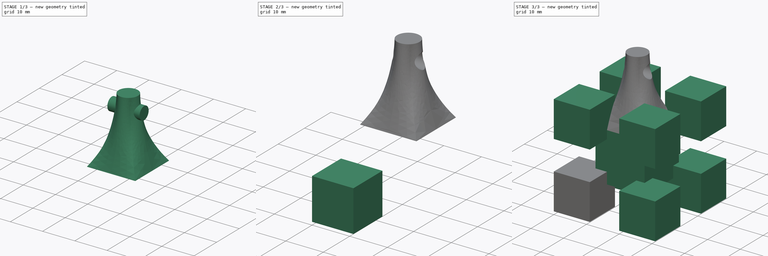
[diagram: build sequence overview — one tinted view per stage of 3, left to right]
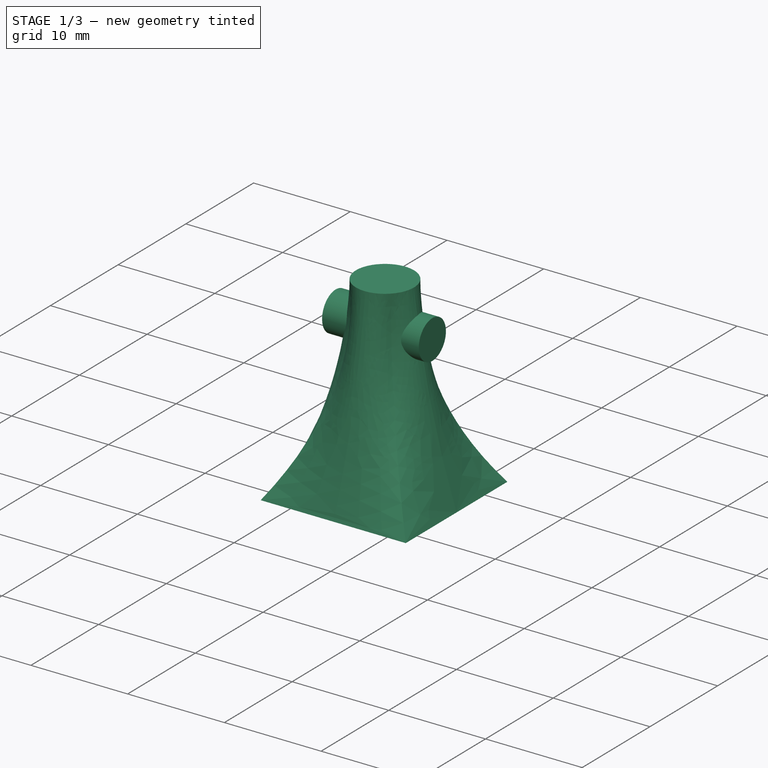
[diagram: stage 1 of 3 — iso view after this stage's code; geometry added in this stage tinted green]
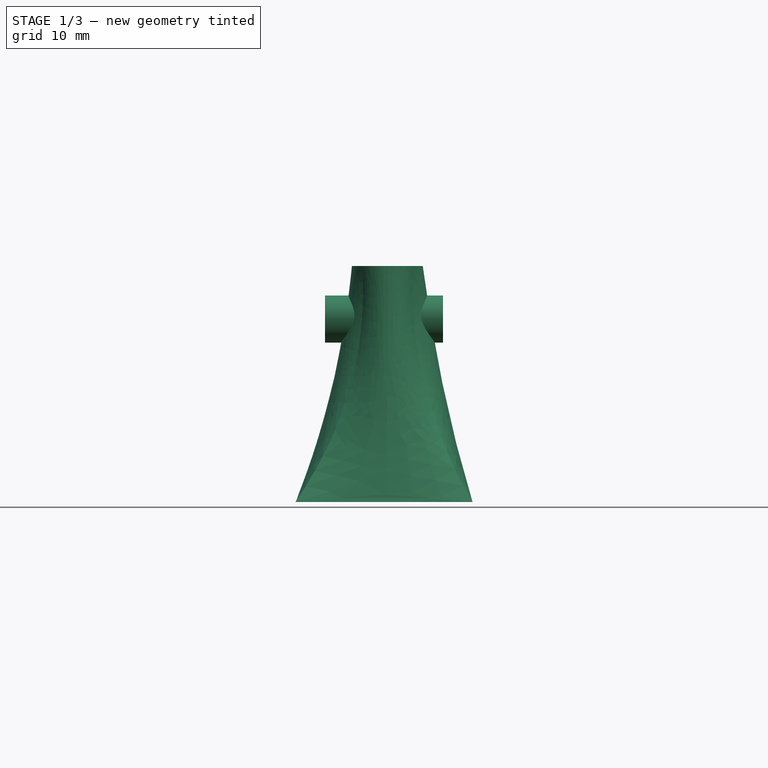
[diagram: stage 1 of 3 — front view after this stage's code; geometry added in this stage tinted green]
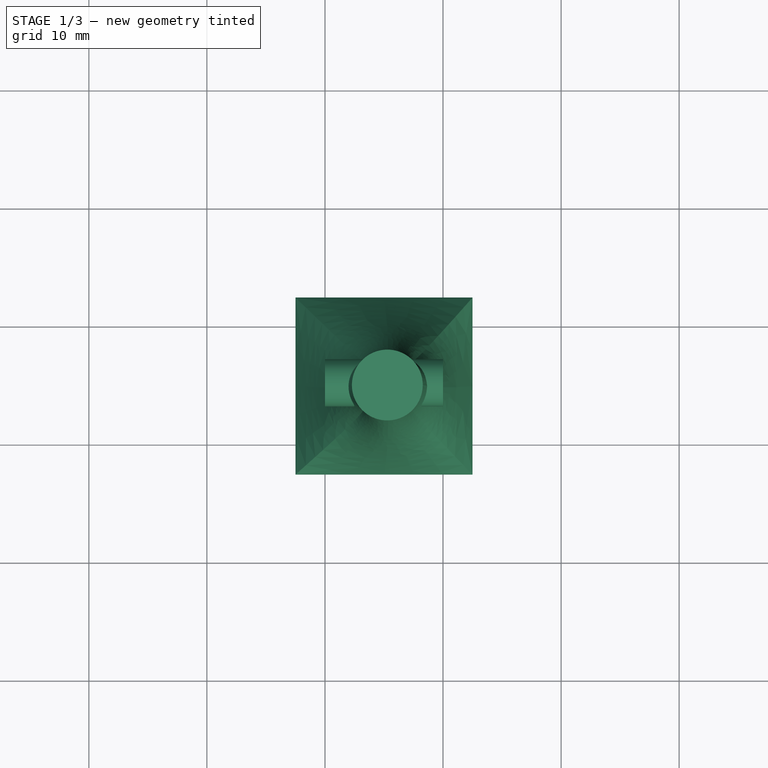
[diagram: stage 1 of 3 — top view after this stage's code; geometry added in this stage tinted green]
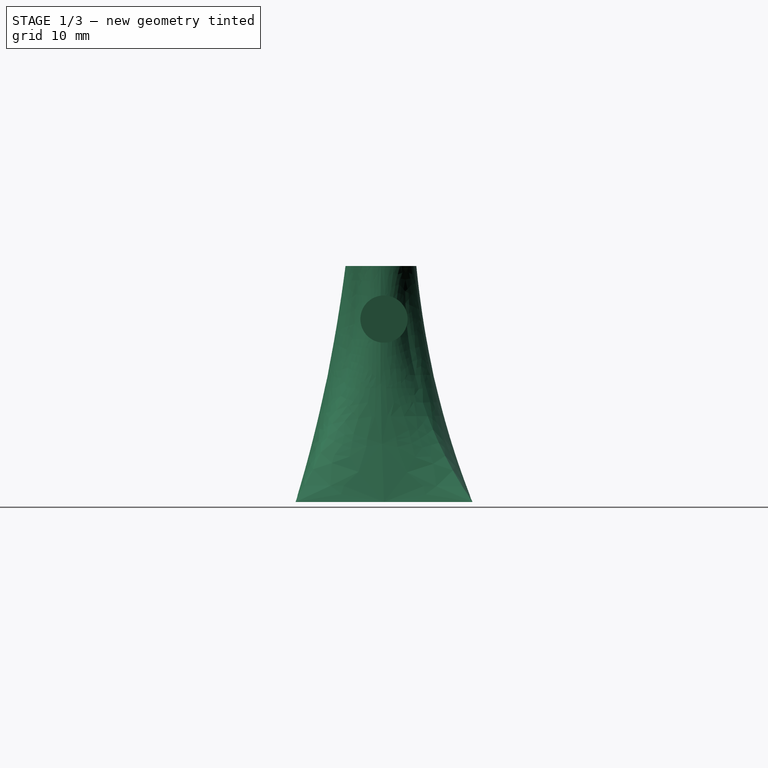
[diagram: stage 1 of 3 — right view after this stage's code; geometry added in this stage tinted green]
FCSTD DOCUMENT  (FreeCAD 0.15R4614 (Git))
Label: cubo cuadrado
License: CC-BY 3.0
LicenseURL: http://creativecommons.org/licenses/by/3.0/
objects: Sketcher::SketchObject×3, Part::Feature×3, Part::Box×2, Part::MultiFuse×2, App::DocumentObjectGroup×2, Part::FeaturePython×1, Part::Loft×1, Part::Cylinder×1, Part::Cut×1
note: 14 computed .brp shape members not serialized (recipe doc carries the construction recipe); baked Part::Feature solids carry a one-line shape summary decoded from their .brp

FEATURE [Part::Box] Box  label="Cubo002"
  Height = 15
  Length = 15
  Placement = pos=(17.5,7.5,7.5) rot=(0,0,1;0rad)
  Width = 15
FEATURE [Sketcher::SketchObject] Sketch
  Placement = pos=(17.5,7.5,22.5) rot=(0,0,1;0rad)
  Support = -> Box [Face6]
  sketch-geometry (4):
    g0: LineSegment StartX=0 StartY=0 StartZ=0 EndX=15 EndY=0 EndZ=0
    g1: LineSegment StartX=15 StartY=0 StartZ=0 EndX=15 EndY=15 EndZ=0
    g2: LineSegment StartX=15 StartY=15 StartZ=0 EndX=0 EndY=15 EndZ=0
    g3: LineSegment StartX=0 StartY=15 StartZ=0 EndX=0 EndY=0 EndZ=0
  constraints (13):
    c: Coincident(g0,g1)
    c: Coincident(g1,g2)
    c: Coincident(g2,g3)
    c: Coincident(g3,g0)
    c: Horizontal(g0)
    c: Horizontal(g2)
    c: Vertical(g1)
    c: Vertical(g3)
    c: Coincident(g0,g-1)
    c: Equal(g2,g1)
    c: Equal(g1,g3)
    c: Equal(g3,g0)
    c: DistanceX(g2) = -15
FEATURE [Sketcher::SketchObject] Sketch001
  Placement = pos=(0,0,42.5) rot=(0,0,1;0rad)
  sketch-geometry (7):
    g0: LineSegment [constr] StartX=17.7812 StartY=22.2395 StartZ=0 EndX=32.7812 EndY=22.2395 EndZ=0
    g1: LineSegment [constr] StartX=32.7812 StartY=22.2395 StartZ=0 EndX=32.7812 EndY=7.23946 EndZ=0
    g2: LineSegment [constr] StartX=32.7812 StartY=7.23946 StartZ=0 EndX=17.7812 EndY=7.23946 EndZ=0
    g3: LineSegment [constr] StartX=17.7812 StartY=7.23946 StartZ=0 EndX=17.7812 EndY=22.2395 EndZ=0
    g4: LineSegment [constr] StartX=25.2812 StartY=14.7395 StartZ=0 EndX=32.7812 EndY=7.23946 EndZ=0
    g5: LineSegment [constr] StartX=32.7812 StartY=22.2395 StartZ=0 EndX=17.7812 EndY=7.23946 EndZ=0
    g6: Circle CenterX=25.2812 CenterY=14.7395 CenterZ=0 NormalX=0 NormalY=0 NormalZ=1 Radius=3
  constraints (21):
    c: Coincident(g0,g1)
    c: Coincident(g1,g2)
    c: Coincident(g2,g3)
    c: Coincident(g3,g0)
    c: Horizontal(g0)
    c: Horizontal(g2)
    c: Vertical(g1)
    c: Vertical(g3)
    c: Equal(g2,g1)
    c: Equal(g1,g0)
    c: Equal(g0,g3)
    c: DistanceX(g0) = 15
    c: Coincident(g4,g1)
    c: Coincident(g5,g0)
    c: Coincident(g5,g2)
    c: PointOnObject(g4,g5)
    c: Coincident(g6,g4)
    c: Radius(g6) = 3
    c: DistanceX(g-1,g2) = 17.7812
    c: DistanceY(g-1,g2) = 7.23946
    c: DistanceY(g-1,g4) = 14.7395
FEATURE [Sketcher::SketchObject] Sketch002
  Placement = pos=(0,0,31) rot=(0,0,1;0rad)
  sketch-geometry (7):
    g0: LineSegment [constr] StartX=17.7812 StartY=22.2395 StartZ=0 EndX=32.7812 EndY=22.2395 EndZ=0
    g1: LineSegment [constr] StartX=32.7812 StartY=22.2395 StartZ=0 EndX=32.7812 EndY=7.23946 EndZ=0
    g2: LineSegment [constr] StartX=32.7812 StartY=7.23946 StartZ=0 EndX=17.7812 EndY=7.23946 EndZ=0
    g3: LineSegment [constr] StartX=17.7812 StartY=7.23946 StartZ=0 EndX=17.7812 EndY=22.2395 EndZ=0
    g4: LineSegment [constr] StartX=25.2812 StartY=14.7395 StartZ=0 EndX=32.7812 EndY=7.23946 EndZ=0
    g5: LineSegment [constr] StartX=32.7812 StartY=22.2395 StartZ=0 EndX=17.7812 EndY=7.23946 EndZ=0
    g6: Circle CenterX=25.2812 CenterY=14.7395 CenterZ=0 NormalX=0 NormalY=0 NormalZ=1 Radius=5
  constraints (21):
    c: Coincident(g0,g1)
    c: Coincident(g1,g2)
    c: Coincident(g2,g3)
    c: Coincident(g3,g0)
    c: Horizontal(g0)
    c: Horizontal(g2)
    c: Vertical(g1)
    c: Vertical(g3)
    c: Equal(g2,g1)
    c: Equal(g1,g0)
    c: Equal(g0,g3)
    c: DistanceX(g0) = 15
    c: Coincident(g4,g1)
    c: Coincident(g5,g0)
    c: Coincident(g5,g2)
    c: PointOnObject(g4,g5)
    c: Coincident(g6,g4)
    c: Radius(g6) = 5
    c: DistanceX(g-1,g2) = 17.7812
    c: DistanceY(g-1,g2) = 7.23946
    c: DistanceY(g-1,g4) = 14.7395
FEATURE [Part::Loft] Loft
  Closed = false
  Ruled = false
  Sections = -> [Sketch,Sketch002,Sketch001]
  Solid = true
FEATURE [Part::Feature] Part__Feature  label="key-model-1"
  Placement = pos=(29.425,22.5888,48.3248) rot=(-0.769848,-0.584752,0.255734;1.59351rad)
  shape: bbox 35.61 x 43.25 x 30.06 mm, 44 faces (baked)
FEATURE [Part::Feature] Part__Feature001  label="key-ring-model-1"
  Placement = pos=(24.813,23.3306,44) rot=(0.008741,-0.333794,0.942605;3.19095rad)
  shape: bbox 24.95 x 22.03 x 18.79 mm, 4 faces (baked)
FEATURE [Part::Cylinder] Cylinder  label="Cilindro"
  Angle = 360
  Height = 10
  Placement = pos=(30,15,38) rot=(0,-1,0;1.5708rad)
  Radius = 2
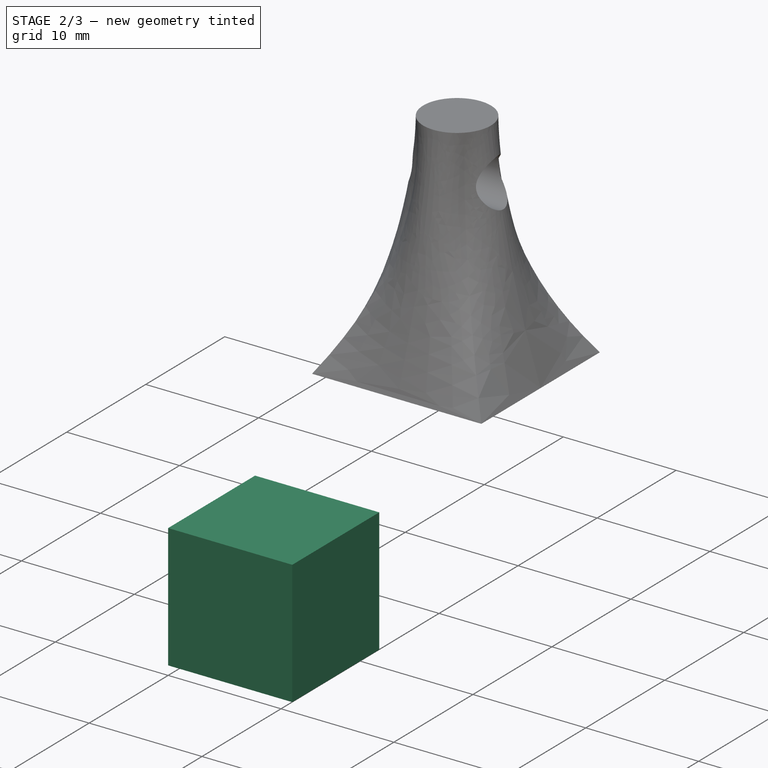
[diagram: stage 2 of 3 — iso view after this stage's code; geometry added in this stage tinted green]
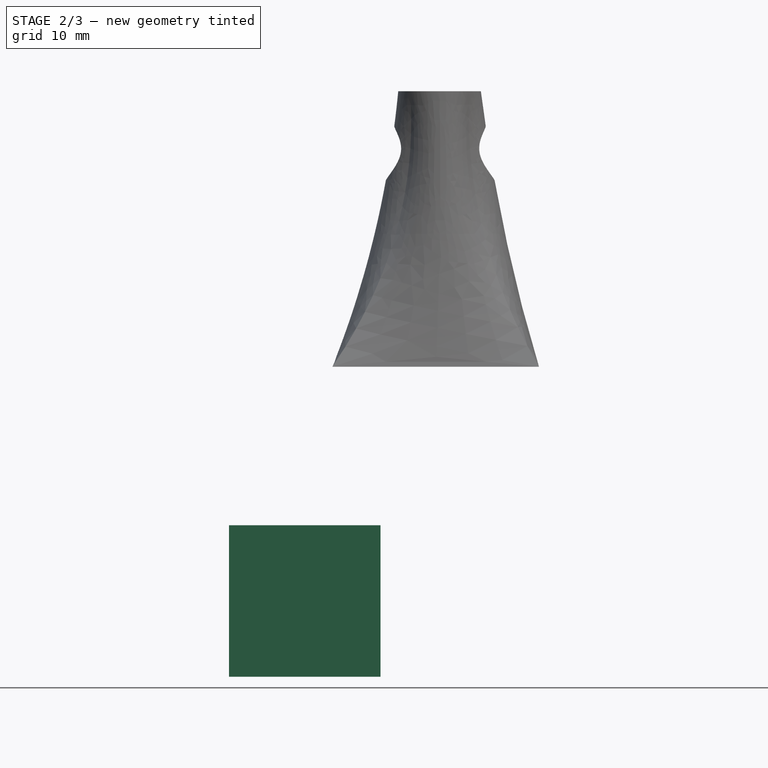
[diagram: stage 2 of 3 — front view after this stage's code; geometry added in this stage tinted green]
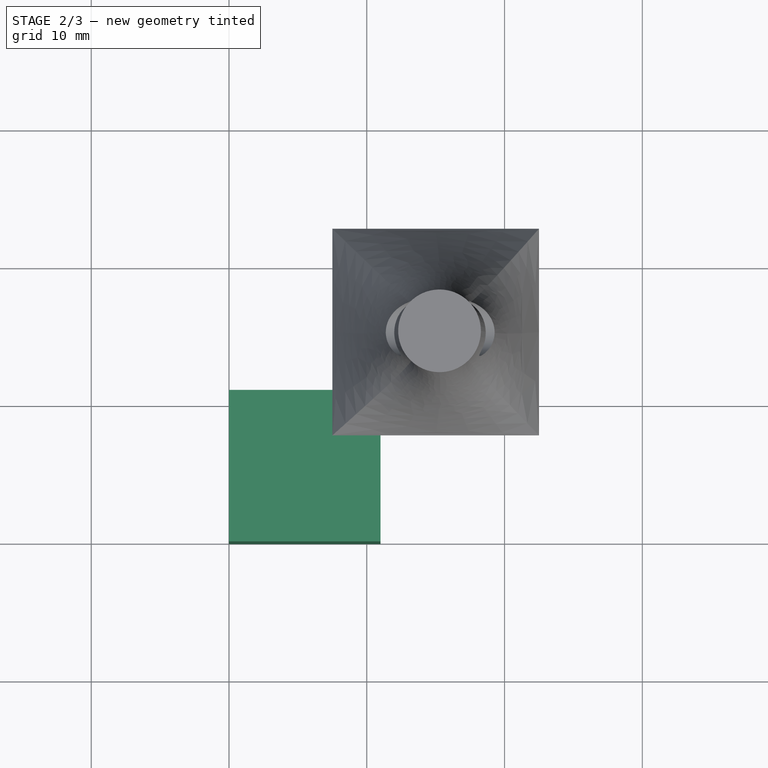
[diagram: stage 2 of 3 — top view after this stage's code; geometry added in this stage tinted green]
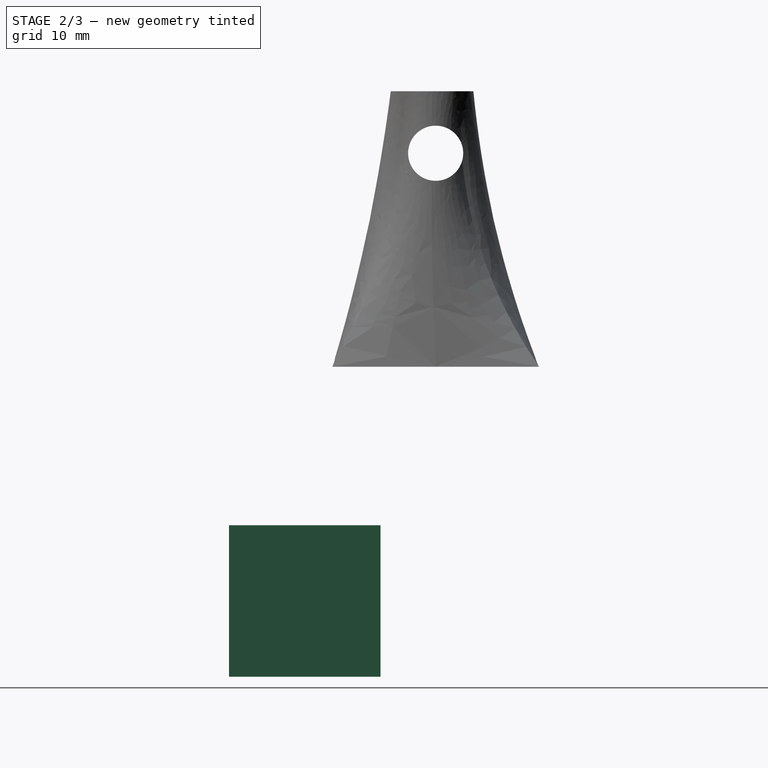
[diagram: stage 2 of 3 — right view after this stage's code; geometry added in this stage tinted green]
FEATURE [Part::Box] Box001  label="Cubo001"
  Height = 11
  Length = 11
  Placement = pos=(10,0,0) rot=(0,0,1;0rad)
  Width = 11
FEATURE [Part::Cut] Cut
  Base = -> Loft
  Tool = -> Cylinder
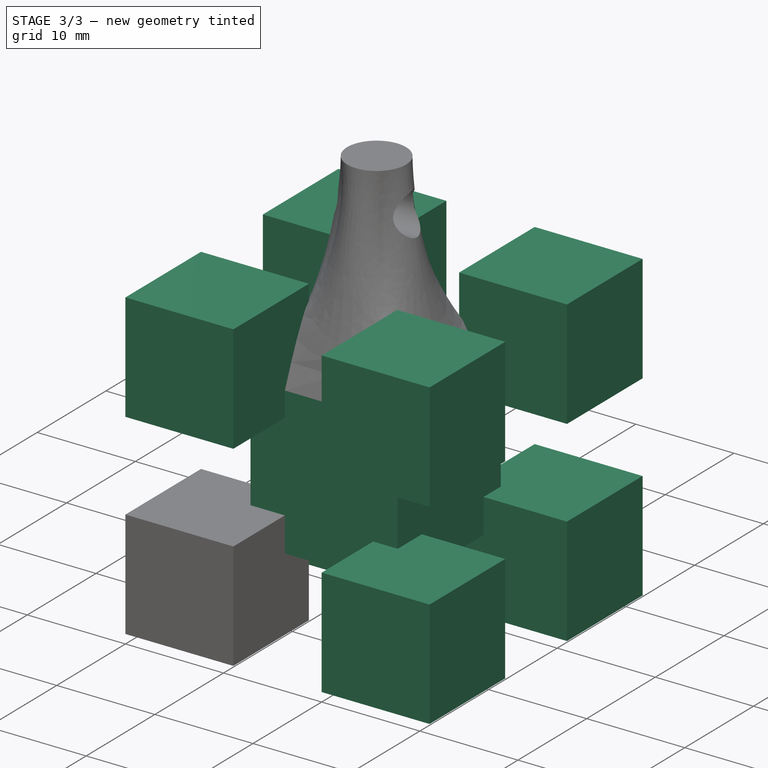
[diagram: stage 3 of 3 — iso view after this stage's code; geometry added in this stage tinted green]
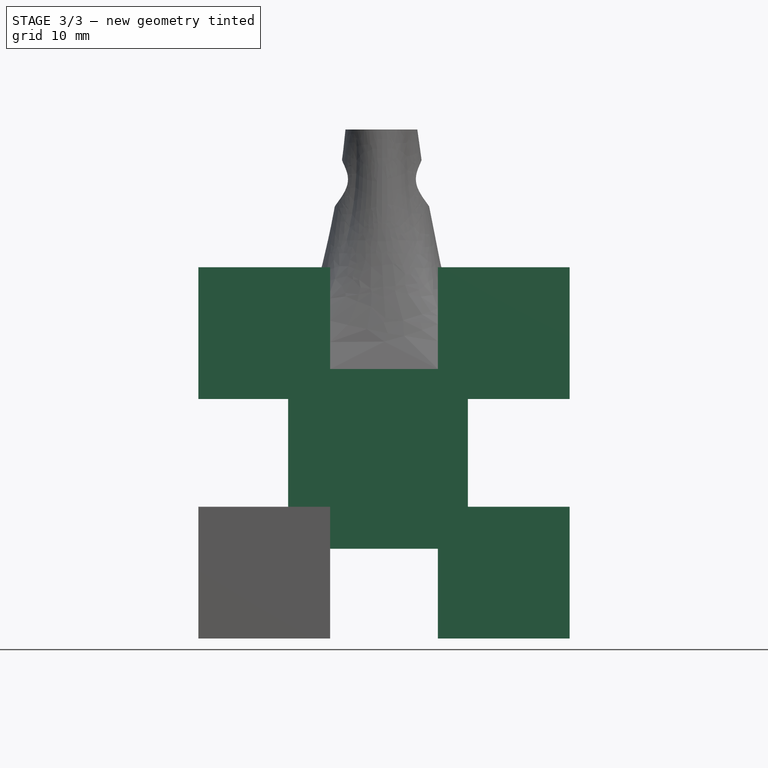
[diagram: stage 3 of 3 — front view after this stage's code; geometry added in this stage tinted green]
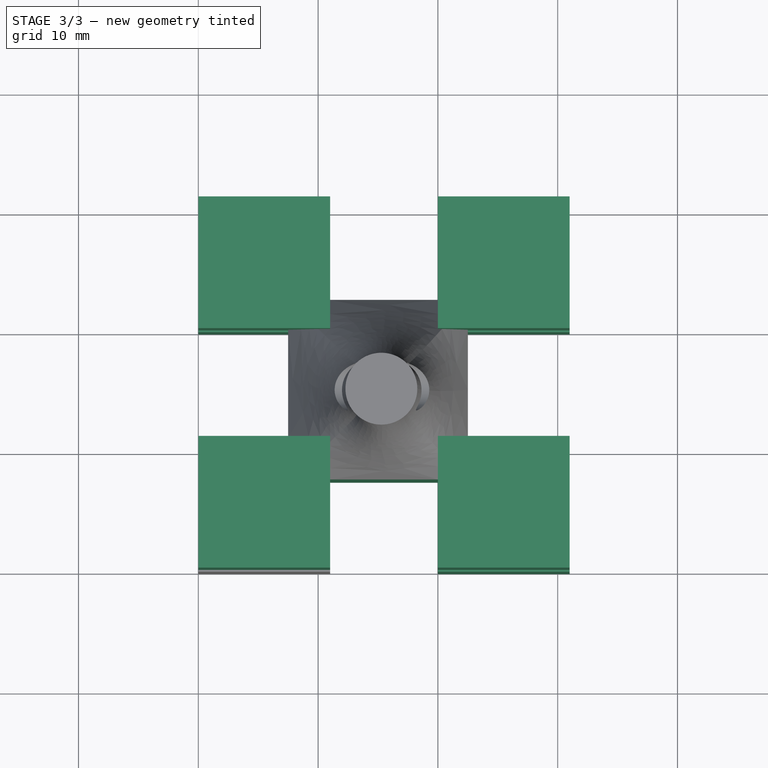
[diagram: stage 3 of 3 — top view after this stage's code; geometry added in this stage tinted green]
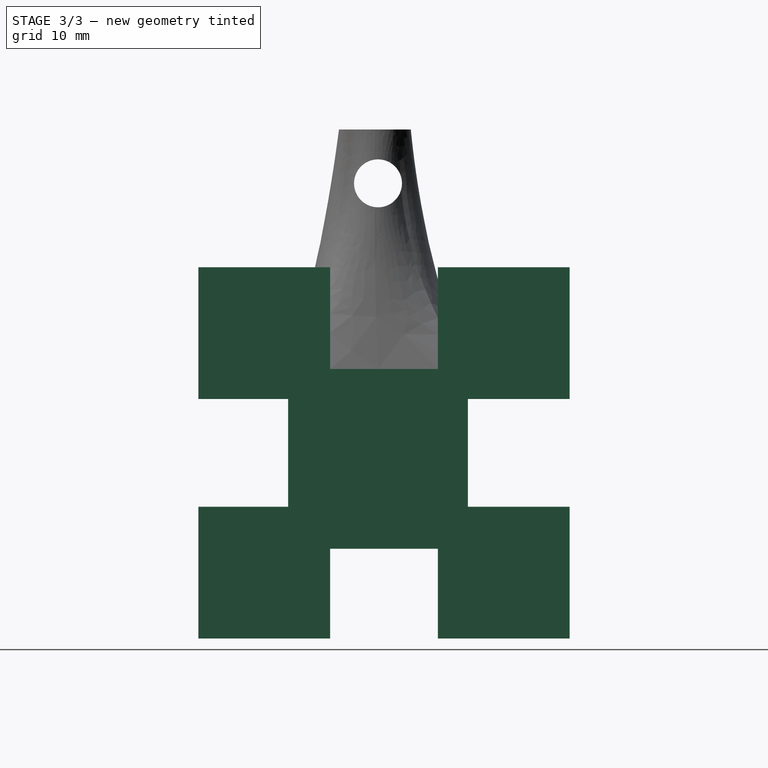
[diagram: stage 3 of 3 — right view after this stage's code; geometry added in this stage tinted green]
FEATURE [Part::FeaturePython] Array  # Draft array (typed FeaturePython)
  Angle = 360
  ArrayType = 0
  Axis = (0,0,1)
  Base = -> Box001
  Center = (0,0,0)
  IntervalX = (20,0,0)
  IntervalY = (0,20,0)
  IntervalZ = (0,0,20)
  NumberPolar = 1
  NumberX = 2
  NumberY = 2
  NumberZ = 2
FEATURE [Part::MultiFuse] Fusion  label="cuboo cuadrado"
  Shapes = -> [Box,Array]
FEATURE [Part::MultiFuse] Fusion001
  Shapes = -> [Fusion,Cut]
FEATURE [App::DocumentObjectGroup] Grupo  label="pieza_cubo_cuadrado"
  Group = -> [Fusion,Loft,Cut,Fusion001]
FEATURE [Part::Feature] Fusion002
  Placement = pos=(-13.5777,3.22483,9.102) rot=(0.383747,0.873255,0.300272;0.369772rad)
  shape: bbox 41.9 x 38.32 x 48.1 mm, 61 faces (baked)
FEATURE [App::DocumentObjectGroup] Grupo001  label="Montaje"
  Group = -> [Part__Feature,Part__Feature001,Fusion002]
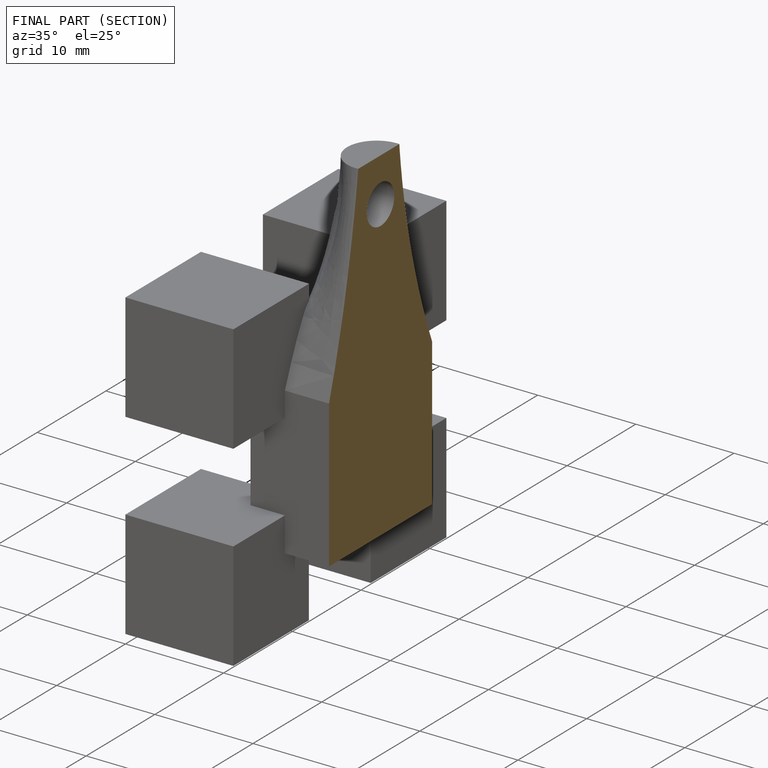
[diagram: finished part — half-section view (interior)]
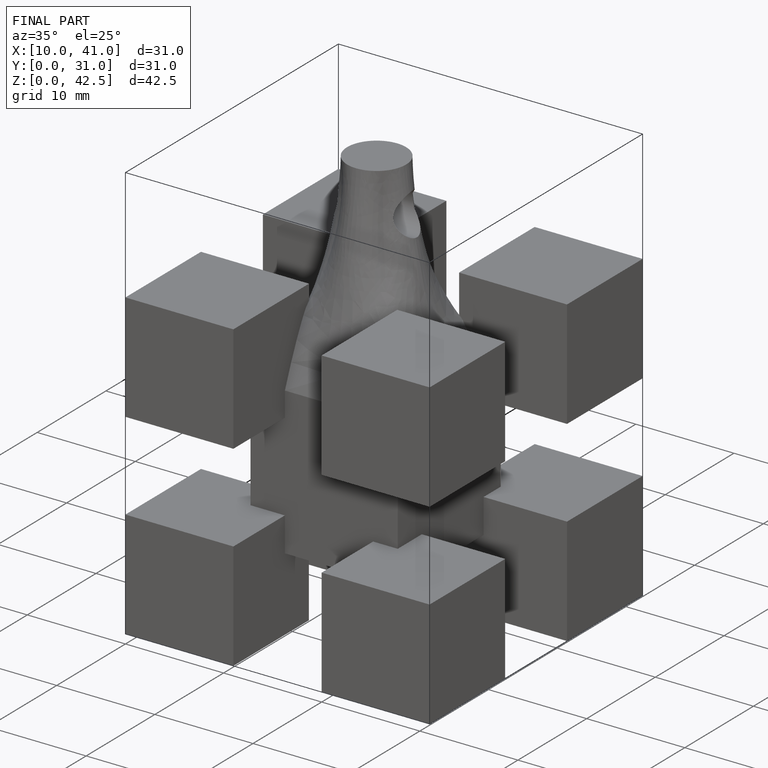
[diagram: finished part — iso view with bounding-box wireframe]
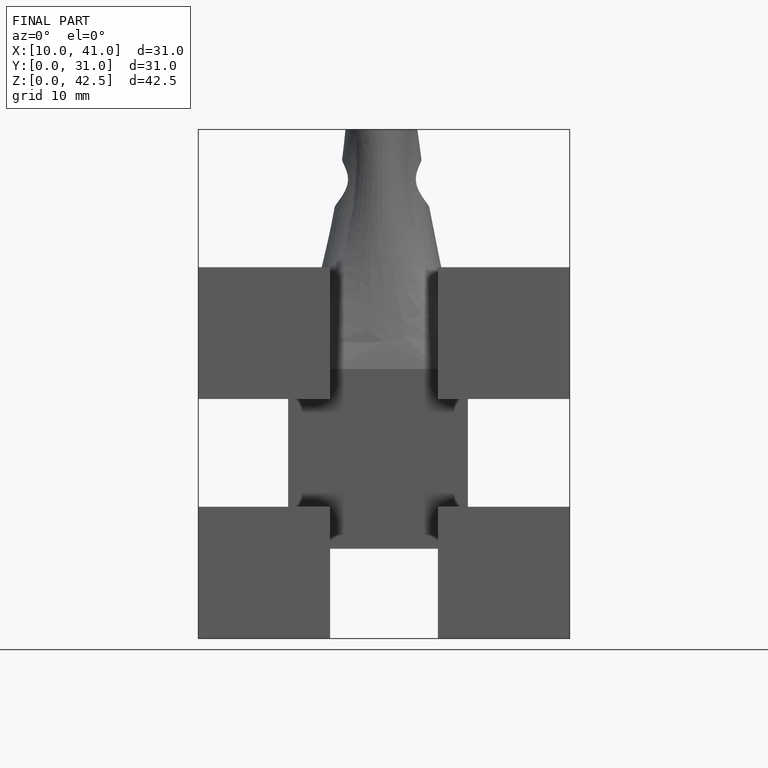
[diagram: finished part — front view with bounding-box wireframe]
